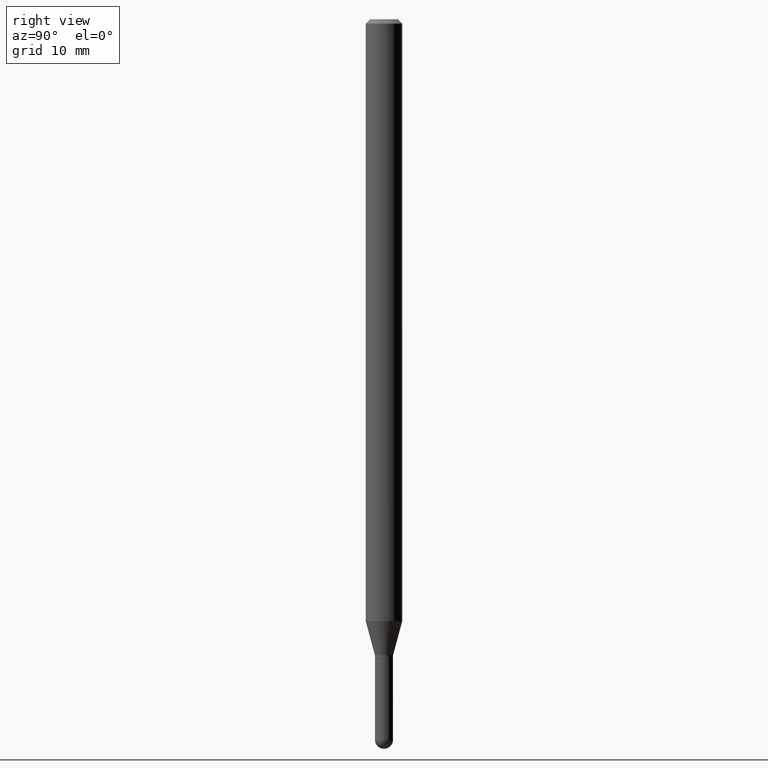
[diagram: clean part render]
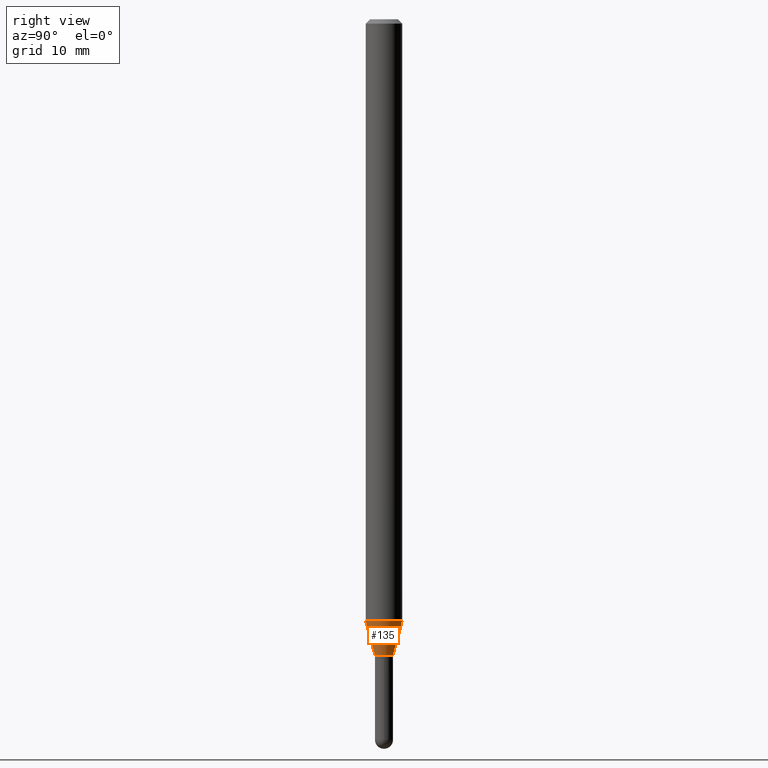
[diagram: same view with one face highlighted and labeled with its STEP entity id]
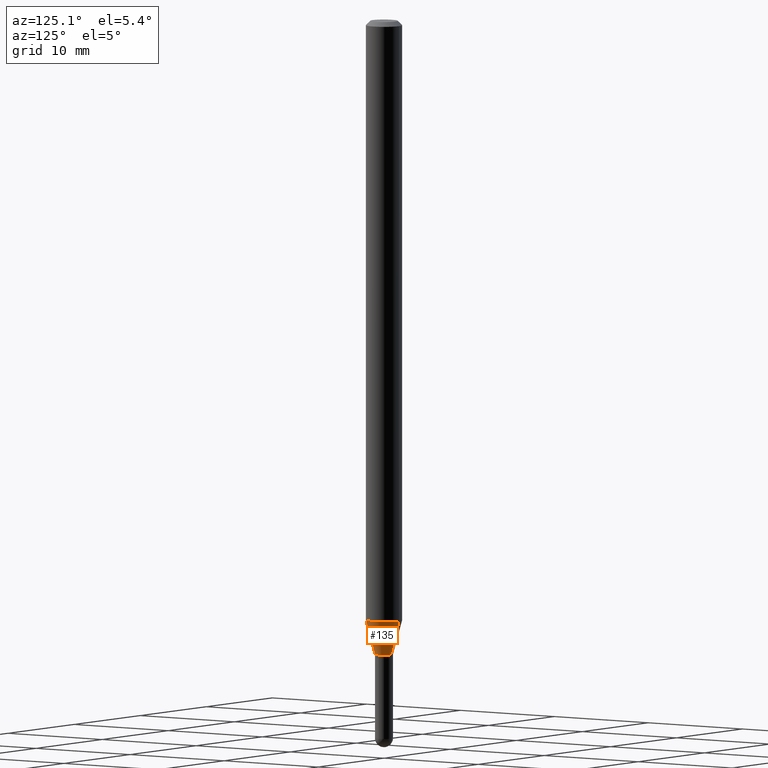
[diagram: same view with one face highlighted and labeled with its STEP entity id]
A machine part, right view. The second image highlights one B-rep face of the part: STEP entity #135.
A second angle (auxiliary view) of the same face is appended — the face is thin or edge-on in the first view.
In plain terms, the highlighted conical surface has half-angle 15 deg.
Its self-contained STEP definition (entity closure, byte-faithful):
#13 = DIRECTION ( 'NONE',  ( -6.982962677686265922E-15, -1.000000000000000000, 4.370956789862821150E-15 ) ) ;
#76 = ORIENTED_EDGE ( 'NONE', *, *, #470, .T. ) ;
#81 = ORIENTED_EDGE ( 'NONE', *, *, #472, .F. ) ;
#82 = CARTESIAN_POINT ( 'NONE',  ( 5.331146826923287692E-29, -7.611393761507219858E-15, -2.180000000000000160 ) ) ;
#83 = DIRECTION ( 'NONE',  ( -1.807323732225328562E-15, -0.2588190451025179639, 0.9659258262890690894 ) ) ;
#96 = CARTESIAN_POINT ( 'NONE',  ( -2.164718430082203928E-16, -0.03100000000000753195, -2.180000000000000160 ) ) ;
#98 = DIRECTION ( 'NONE',  ( 1.839019923739598738E-15, 0.2588190451025247363, 0.9659258262890673130 ) ) ;
#132 = DIRECTION ( 'NONE',  ( -2.445480195836370000E-29, 3.491465028214320670E-15, 1.000000000000000000 ) ) ;
#134 = EDGE_LOOP ( 'NONE', ( #317, #76, #81, #417 ) ) ;
#135 = ADVANCED_FACE ( 'NONE', ( #502 ), #197, .T. ) ;
#151 = CIRCLE ( 'NONE', #450, 0.03099999999999992345 ) ;
#170 = VERTEX_POINT ( 'NONE', #245 ) ;
#171 = AXIS2_PLACEMENT_3D ( 'NONE', #330, #200, #13 ) ;
#192 = DIRECTION ( 'NONE',  ( -6.982962677686265922E-15, -1.000000000000000000, 0.000000000000000000 ) ) ;
#193 = VERTEX_POINT ( 'NONE', #96 ) ;
#197 = CONICAL_SURFACE ( 'NONE', #432, 0.03099999999999992345, 0.2617993877991500740 ) ;
#200 = DIRECTION ( 'NONE',  ( -2.445480195836370000E-29, 3.491465028214320670E-15, 1.000000000000000000 ) ) ;
#245 = CARTESIAN_POINT ( 'NONE',  ( -4.364351673553413795E-16, -0.06250000000000723033, -2.062440399561580318 ) ) ;
#266 = LINE ( 'NONE', #399, #327 ) ;
#267 = DIRECTION ( 'NONE',  ( -2.445480195836370000E-29, 3.491465028214320670E-15, 1.000000000000000000 ) ) ;
#271 = VECTOR ( 'NONE', #98, 39.37007874015748854 ) ;
#287 = DIRECTION ( 'NONE',  ( -6.982962677686265922E-15, -1.000000000000000000, 0.000000000000000000 ) ) ;
#302 = CARTESIAN_POINT ( 'NONE',  ( 4.440892098501128074E-16, 0.06249999999999278355, -2.062440399561580762 ) ) ;
#304 = VERTEX_POINT ( 'NONE', #332 ) ;
#317 = ORIENTED_EDGE ( 'NONE', *, *, #331, .T. ) ;
#327 = VECTOR ( 'NONE', #83, 39.37007874015748854 ) ;
#330 = CARTESIAN_POINT ( 'NONE',  ( 5.043657152220695549E-29, -7.200938527845627265E-15, -2.062440399561580762 ) ) ;
#331 = EDGE_CURVE ( 'NONE', #193, #304, #151, .T. ) ;
#332 = CARTESIAN_POINT ( 'NONE',  ( 3.321787289678984079E-16, 0.03099999999999231148, -2.180000000000000160 ) ) ;
#355 = CIRCLE ( 'NONE', #171, 0.06250000000000000000 ) ;
#370 = CARTESIAN_POINT ( 'NONE',  ( 2.202682480856837865E-16, 0.03099999999999231148, -2.180000000000000160 ) ) ;
#399 = CARTESIAN_POINT ( 'NONE',  ( -2.164718430082203928E-16, -0.03100000000000753195, -2.180000000000000160 ) ) ;
#410 = LINE ( 'NONE', #370, #271 ) ;
#417 = ORIENTED_EDGE ( 'NONE', *, *, #508, .F. ) ;
#432 = AXIS2_PLACEMENT_3D ( 'NONE', #82, #267, #192 ) ;
#450 = AXIS2_PLACEMENT_3D ( 'NONE', #488, #132, #287 ) ;
#457 = VERTEX_POINT ( 'NONE', #302 ) ;
#470 = EDGE_CURVE ( 'NONE', #304, #457, #410, .T. ) ;
#472 = EDGE_CURVE ( 'NONE', #170, #457, #355, .T. ) ;
#488 = CARTESIAN_POINT ( 'NONE',  ( 5.331146826923287692E-29, -7.611393761507219858E-15, -2.180000000000000160 ) ) ;
#502 = FACE_OUTER_BOUND ( 'NONE', #134, .T. ) ;
#508 = EDGE_CURVE ( 'NONE', #193, #170, #266, .T. ) ;